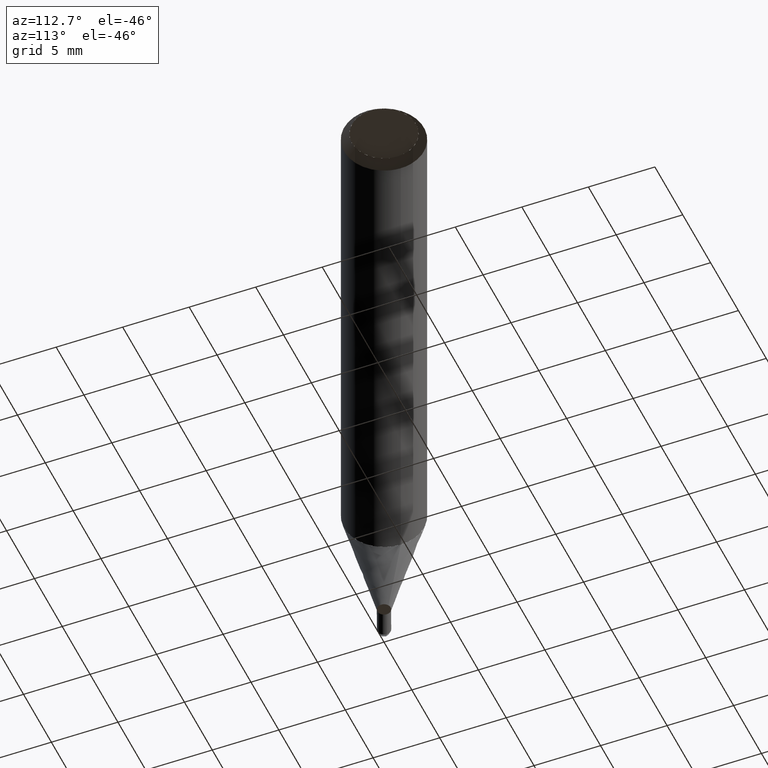
[diagram: clean part render]
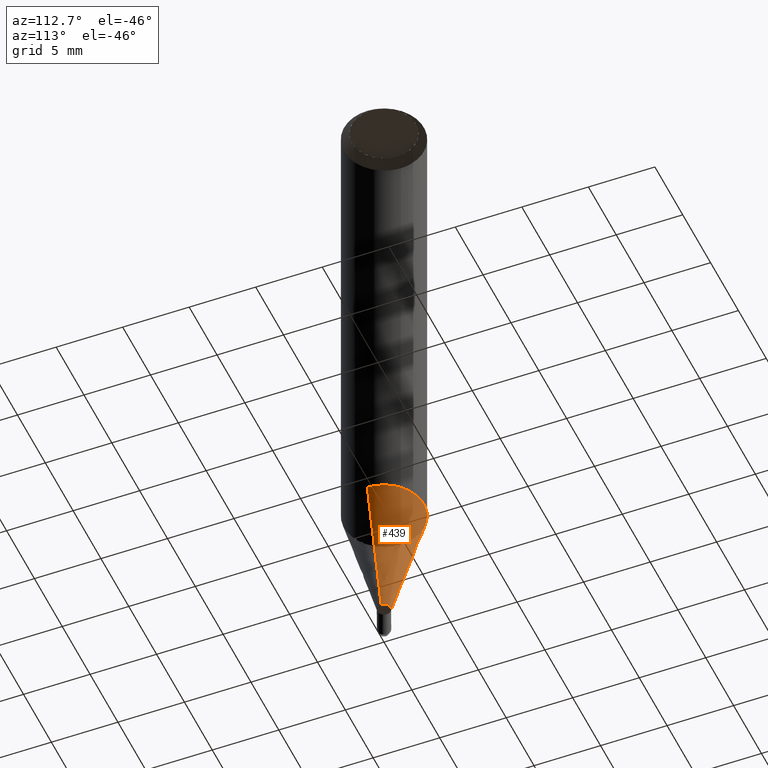
[diagram: same view with one face highlighted and labeled with its STEP entity id]
A machine part, auxiliary view. The second image highlights one B-rep face of the part: STEP entity #439.
In plain terms, the highlighted face is a freeform B-spline surface patch.
Its self-contained STEP definition (entity closure, byte-faithful):
#238=CARTESIAN_POINT('',(0.5,0.0,-9.330127018922));
#239=CARTESIAN_POINT('',(0.5,0.5,-9.330127018922));
#240=CARTESIAN_POINT('',(0.0,0.5,-9.330127018922));
#241=CARTESIAN_POINT('',(-0.5,0.5,-9.330127018922));
#242=CARTESIAN_POINT('',(-0.5,0.0,-9.330127018922));
#243=CARTESIAN_POINT('',(3.0,0.0,-0.0));
#244=CARTESIAN_POINT('',(3.0,3.0,-0.0));
#245=CARTESIAN_POINT('',(0.0,3.0,-0.0));
#246=CARTESIAN_POINT('',(-3.0,3.0,-0.0));
#247=CARTESIAN_POINT('',(-3.0,0.0,-0.0));
#420=(
BOUNDED_SURFACE()
B_SPLINE_SURFACE(1,2,(
(#238,#239,#240,#241,#242),
(#243,#244,#245,#246,#247)
), .UNSPECIFIED.,.F.,.F.,.F.)
B_SPLINE_SURFACE_WITH_KNOTS((2,2),(3,2,3),(
0.0,1.0),(
0.0,0.5,1.0), .UNSPECIFIED.)
GEOMETRIC_REPRESENTATION_ITEM()
RATIONAL_B_SPLINE_SURFACE(((1.0,0.707106781187,1.0,0.707106781187,1.0),
(1.0,0.707106781187,1.0,0.707106781187,1.0)
))
REPRESENTATION_ITEM('')
SURFACE()
);
#421=(
BOUNDED_CURVE()
B_SPLINE_CURVE(2,(#243,#244,#245,#246,#247),.UNSPECIFIED.,.F.,.F.)
B_SPLINE_CURVE_WITH_KNOTS((3,2,3),
(0.0,0.5,1.0),.UNSPECIFIED.)
CURVE()
GEOMETRIC_REPRESENTATION_ITEM()
RATIONAL_B_SPLINE_CURVE((1.0,0.707106781187,1.0,0.707106781187,1.0))
REPRESENTATION_ITEM('')
);
#422=(
BOUNDED_CURVE()
B_SPLINE_CURVE(1,(#247,#242),.UNSPECIFIED.,.F.,.F.)
B_SPLINE_CURVE_WITH_KNOTS((2,2),
(0.0,1.0),.UNSPECIFIED.)
CURVE()
GEOMETRIC_REPRESENTATION_ITEM()
RATIONAL_B_SPLINE_CURVE((1.0,1.0))
REPRESENTATION_ITEM('')
);
#423=(
BOUNDED_CURVE()
B_SPLINE_CURVE(2,(#242,#241,#240,#239,#238),.UNSPECIFIED.,.F.,.F.)
B_SPLINE_CURVE_WITH_KNOTS((3,2,3),
(0.0,0.5,1.0),.UNSPECIFIED.)
CURVE()
GEOMETRIC_REPRESENTATION_ITEM()
RATIONAL_B_SPLINE_CURVE((1.0,0.707106781187,1.0,0.707106781187,1.0))
REPRESENTATION_ITEM('')
);
#424=(
BOUNDED_CURVE()
B_SPLINE_CURVE(1,(#238,#243),.UNSPECIFIED.,.F.,.F.)
B_SPLINE_CURVE_WITH_KNOTS((2,2),
(0.0,1.0),.UNSPECIFIED.)
CURVE()
GEOMETRIC_REPRESENTATION_ITEM()
RATIONAL_B_SPLINE_CURVE((1.0,1.0))
REPRESENTATION_ITEM('')
);
#425=VERTEX_POINT('',#238);
#426=VERTEX_POINT('',#242);
#427=VERTEX_POINT('',#243);
#428=VERTEX_POINT('',#247);
#429=EDGE_CURVE('',#427,#428,#421,.T.);
#430=EDGE_CURVE('',#428,#426,#422,.T.);
#431=EDGE_CURVE('',#426,#425,#423,.T.);
#432=EDGE_CURVE('',#425,#427,#424,.T.);
#433=ORIENTED_EDGE('',*,*,#429,.T.);
#434=ORIENTED_EDGE('',*,*,#430,.T.);
#435=ORIENTED_EDGE('',*,*,#431,.T.);
#436=ORIENTED_EDGE('',*,*,#432,.T.);
#437=EDGE_LOOP('',(#433,#434,#435,#436));
#438=FACE_OUTER_BOUND('',#437,.T.);
#439=ADVANCED_FACE('',(#438),#420,.T.);